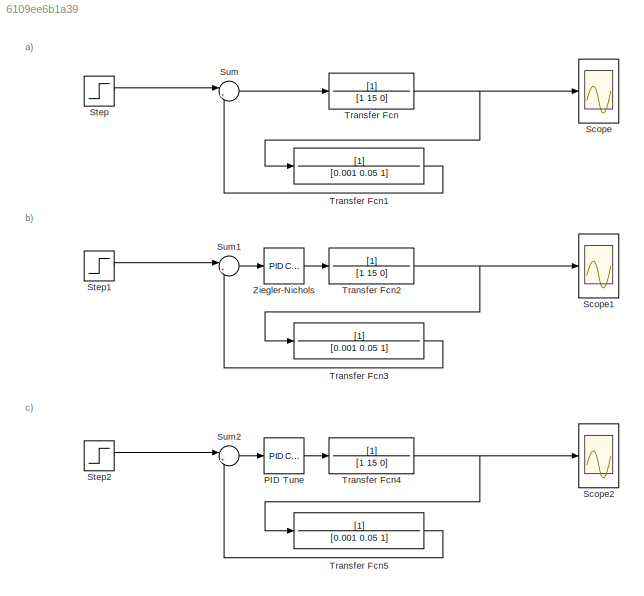
MODEL slx_6109ee6b1a39
KIND model
CONFIG AbsTol = auto
CONFIG EnableMultiTasking = off
CONFIG FixedStep = 0.1
CONFIG MaxStep = auto
CONFIG MinStep = auto
CONFIG RelTol = 1e-3
CONFIG SampleTimeConstraint = Unconstrained
CONFIG SolverName = VariableStepAuto
CONFIG StartTime = 0.0
CONFIG StopTime = 10.0
BLOCK [Reference] PID Tune  REF=slpidlib/PID Controller
  LibrarySourceBlock = simulink/Continuous/PID Controller
  SourceBlock = slpidlib/PID Controller
  SourceType = PID 1dof
BLOCK [Scope] Scope
  Floating = off
  NumInputPorts = 1
  ScopeSpecificationString = Simulink.scopes.TimeScopeBlockCfg('CurrentConfiguration', extmgr.ConfigurationSet(extmgr.Configuration('Core','General UI',true),extmgr.Configuration('Core','Source UI',true),extmgr.Configuration('Sources','WiredSimulink',true),extmgr.Configuration('Visuals','Time Domain',true,'SerializedDisplays',{struct('MinYLimReal','-0.18927','MaxYLimReal','1.70345','YLabelReal','','MinYLimMag','0.00000','MaxY...<+1407ch>
BLOCK [Scope] Scope1
  Floating = off
  NumInputPorts = 1
  ScopeSpecificationString = Simulink.scopes.TimeScopeBlockCfg('CurrentConfiguration', extmgr.ConfigurationSet(extmgr.Configuration('Core','General UI',true),extmgr.Configuration('Core','Source UI',true),extmgr.Configuration('Sources','WiredSimulink',true,'DataLoggingVariableName','ScopeData1'),extmgr.Configuration('Visuals','Time Domain',true,'SerializedDisplays',{struct('MinYLimReal','-0.18927','MaxYLimReal','1.70345','YLab...<+1446ch>
BLOCK [Scope] Scope2
  Floating = off
  NumInputPorts = 1
  ScopeSpecificationString = Simulink.scopes.TimeScopeBlockCfg('CurrentConfiguration', extmgr.ConfigurationSet(extmgr.Configuration('Core','General UI',true),extmgr.Configuration('Core','Source UI',true),extmgr.Configuration('Sources','WiredSimulink',true,'DataLoggingVariableName','ScopeData2'),extmgr.Configuration('Visuals','Time Domain',true,'SerializedDisplays',{struct('MinYLimReal','-0.18927','MaxYLimReal','1.70345','YLab...<+1449ch>
BLOCK [Step] Step
  SampleTime = 0
  Time = 0
BLOCK [Step] Step1
  SampleTime = 0
  Time = 0
BLOCK [Step] Step2
  SampleTime = 0
  Time = 0
BLOCK [Sum] Sum
  Inputs = |+-
BLOCK [Sum] Sum1
  Inputs = |+-
BLOCK [Sum] Sum2
  Inputs = |+-
BLOCK [TransferFcn] Transfer Fcn
  Denominator = [1 15 0]
BLOCK [TransferFcn] Transfer Fcn1
  Denominator = [0.001 0.05 1]
BLOCK [TransferFcn] Transfer Fcn2
  Denominator = [1 15 0]
BLOCK [TransferFcn] Transfer Fcn3
  Denominator = [0.001 0.05 1]
BLOCK [TransferFcn] Transfer Fcn4
  Denominator = [1 15 0]
BLOCK [TransferFcn] Transfer Fcn5
  Denominator = [0.001 0.05 1]
BLOCK [Reference] Ziegler-Nichols  REF=slpidlib/PID Controller
  LibrarySourceBlock = simulink/Continuous/PID Controller
  SourceBlock = slpidlib/PID Controller
  SourceType = PID 1dof
ANNOTATION (root): a)
ANNOTATION (root): b)
ANNOTATION (root): c)
LINE PID Tune:1 -> Transfer Fcn4:1
LINE Step1:1 -> Sum1:1
LINE Step2:1 -> Sum2:1
LINE Step:1 -> Sum:1
LINE Sum1:1 -> Ziegler-Nichols:1
LINE Sum2:1 -> PID Tune:1
LINE Sum:1 -> Transfer Fcn:1
LINE Transfer Fcn1:1 -> Sum:2
NET Transfer Fcn2:1 -> Scope1:1, Transfer Fcn3:1
LINE Transfer Fcn3:1 -> Sum1:2
NET Transfer Fcn4:1 -> Scope2:1, Transfer Fcn5:1
LINE Transfer Fcn5:1 -> Sum2:2
NET Transfer Fcn:1 -> Scope:1, Transfer Fcn1:1
LINE Ziegler-Nichols:1 -> Transfer Fcn2:1
note: NET lines group one-source signal fan-out (src -> all destinations, sorted); 1:1 wires keep LINE
